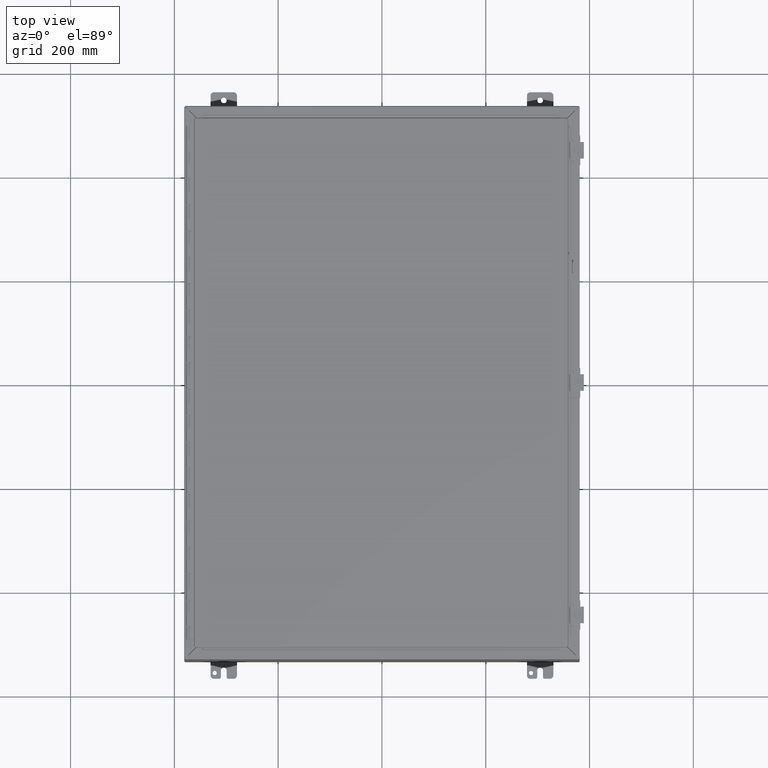
[diagram: clean part render]
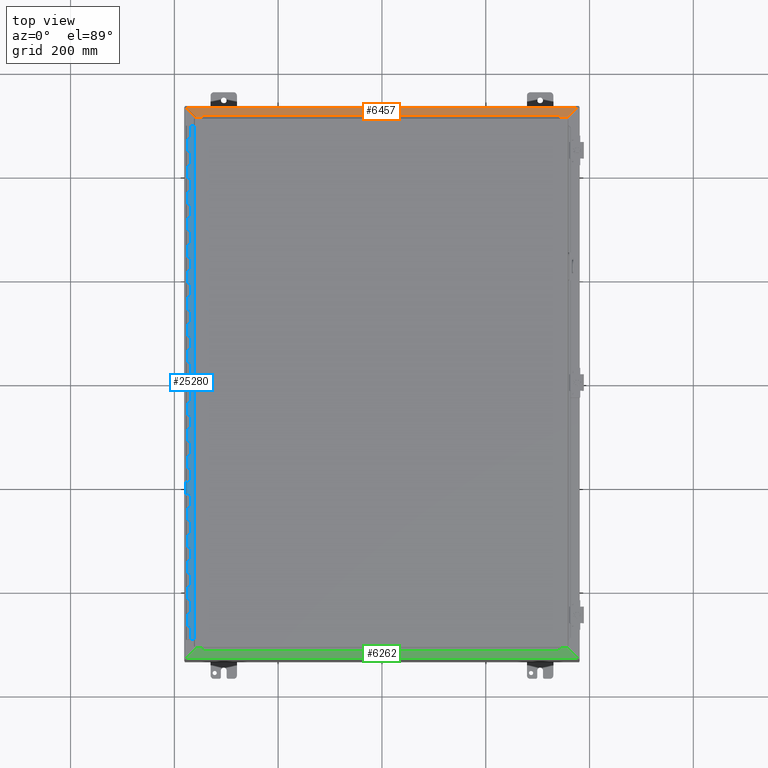
[diagram: same view with three faces highlighted in distinct colors, each labeled with its STEP entity id]
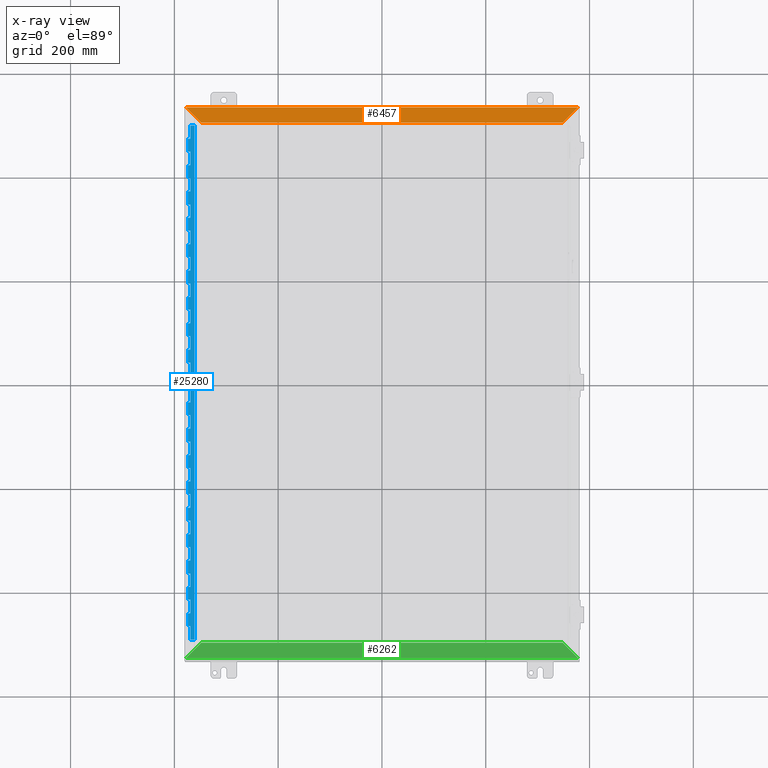
[diagram: x-ray of the same camera — body ghosted, the three highlighted faces saturated]
A machine part, top view with three faces highlighted in distinct colors.
The next image is the same camera in x-ray (body ghosted, the three faces saturated) — at least one of them is partly hidden behind the body in this view.
Their STEP definitions:

[orange] entity #6457 — the highlighted planar face has unit normal (0, 0, 1).
#5017=CARTESIAN_POINT('',(13.719201456544015,19.730250000000058,12.000000000000014));
#5018=VERTEX_POINT('',#5017);
#5065=CARTESIAN_POINT('',(-13.719201456544019,19.730250000000058,12.000000000000014));
#5066=VERTEX_POINT('',#5065);
#5091=CARTESIAN_POINT('',(-13.71920145654402,19.730250000000058,12.000000000000012));
#5092=DIRECTION('',(1.0,0.0,0.0));
#5093=VECTOR('',#5092,27.438402913088034);
#5094=LINE('',#5091,#5093);
#5095=EDGE_CURVE('',#5066,#5018,#5094,.T.);
#5673=CARTESIAN_POINT('',(-14.883701456544024,20.894750000000059,12.000000000000002));
#5674=VERTEX_POINT('',#5673);
#5675=CARTESIAN_POINT('',(-13.719201456544019,19.730250000000058,12.000000000000012));
#5676=DIRECTION('',(-0.707106781186548,0.707106781186547,-8.629104E-015));
#5677=VECTOR('',#5676,1.646851693383476);
#5678=LINE('',#5675,#5677);
#5679=EDGE_CURVE('',#5066,#5674,#5678,.T.);
#6434=CARTESIAN_POINT('',(5.377354E-015,20.303016921115482,12.000000000000005));
#6435=DIRECTION('',(0.0,0.0,1.0));
#6436=DIRECTION('',(0.0,-1.0,0.0));
#6437=AXIS2_PLACEMENT_3D('',#6434,#6435,#6436);
#6438=PLANE('',#6437);
#6439=ORIENTED_EDGE('',*,*,#5095,.T.);
#6440=CARTESIAN_POINT('',(14.883701456544015,20.894750000000059,12.000000000000002));
#6441=VERTEX_POINT('',#6440);
#6442=CARTESIAN_POINT('',(14.883701456544017,20.894750000000059,12.0));
#6443=DIRECTION('',(-0.707106781186548,-0.707106781186548,8.629104E-015));
#6444=VECTOR('',#6443,1.64685169338347);
#6445=LINE('',#6442,#6444);
#6446=EDGE_CURVE('',#6441,#5018,#6445,.T.);
#6447=ORIENTED_EDGE('',*,*,#6446,.F.);
#6448=CARTESIAN_POINT('',(14.883701456544017,20.894750000000062,12.0));
#6449=DIRECTION('',(-1.0,0.0,0.0));
#6450=VECTOR('',#6449,29.767402913088041);
#6451=LINE('',#6448,#6450);
#6452=EDGE_CURVE('',#6441,#5674,#6451,.T.);
#6453=ORIENTED_EDGE('',*,*,#6452,.T.);
#6454=ORIENTED_EDGE('',*,*,#5679,.F.);
#6455=EDGE_LOOP('',(#6439,#6447,#6453,#6454));
#6456=FACE_OUTER_BOUND('',#6455,.T.);
#6457=ADVANCED_FACE('',(#6456),#6438,.T.);

[blue] entity #25280 — the highlighted planar face has unit normal (0.0872, 0, 0.9962).
#22495=CARTESIAN_POINT('',(0.0,-0.125,1.000000000000008));
#22496=VERTEX_POINT('',#22495);
#22506=CARTESIAN_POINT('',(-0.18,-0.125,1.000000000000008));
#22507=VERTEX_POINT('',#22506);
#22508=CARTESIAN_POINT('',(-0.18,-0.125,1.000000000000008));
#22509=DIRECTION('',(1.0,0.0,0.0));
#22510=VECTOR('',#22509,0.18);
#22511=LINE('',#22508,#22510);
#22512=EDGE_CURVE('',#22507,#22496,#22511,.T.);
#22555=CARTESIAN_POINT('',(-0.18,-0.125,0.0));
#22556=VERTEX_POINT('',#22555);
#22570=CARTESIAN_POINT('',(-0.18,-0.125,0.0));
#22571=DIRECTION('',(0.0,0.0,1.0));
#22572=VECTOR('',#22571,1.000000000000008);
#22573=LINE('',#22570,#22572);
#22574=EDGE_CURVE('',#22556,#22507,#22573,.T.);
#22584=CARTESIAN_POINT('',(0.0,-0.125,3.000000000000007));
#22585=VERTEX_POINT('',#22584);
#22595=CARTESIAN_POINT('',(-0.18,-0.125,3.000000000000007));
#22596=VERTEX_POINT('',#22595);
#22597=CARTESIAN_POINT('',(-0.18,-0.125,3.000000000000007));
#22598=DIRECTION('',(1.0,0.0,0.0));
#22599=VECTOR('',#22598,0.18);
#22600=LINE('',#22597,#22599);
#22601=EDGE_CURVE('',#22596,#22585,#22600,.T.);
#22651=CARTESIAN_POINT('',(-0.18,-0.125,1.980000000000007));
#22652=VERTEX_POINT('',#22651);
#22653=CARTESIAN_POINT('',(-0.18,-0.125,1.980000000000006));
#22654=DIRECTION('',(0.0,0.0,1.0));
#22655=VECTOR('',#22654,1.020000000000001);
#22656=LINE('',#22653,#22655);
#22657=EDGE_CURVE('',#22652,#22596,#22656,.T.);
#22675=CARTESIAN_POINT('',(0.0,-0.125,1.980000000000007));
#22676=VERTEX_POINT('',#22675);
#22708=CARTESIAN_POINT('',(0.0,-0.125,1.980000000000007));
#22709=DIRECTION('',(-1.0,0.0,0.0));
#22710=VECTOR('',#22709,0.18);
#22711=LINE('',#22708,#22710);
#22712=EDGE_CURVE('',#22676,#22652,#22711,.T.);
#22722=CARTESIAN_POINT('',(0.0,-0.125,5.000000000000006));
#22723=VERTEX_POINT('',#22722);
#22733=CARTESIAN_POINT('',(-0.18,-0.125,5.000000000000007));
#22734=VERTEX_POINT('',#22733);
#22735=CARTESIAN_POINT('',(-0.18,-0.125,5.000000000000007));
#22736=DIRECTION('',(1.0,0.0,0.0));
#22737=VECTOR('',#22736,0.18);
#22738=LINE('',#22735,#22737);
#22739=EDGE_CURVE('',#22734,#22723,#22738,.T.);
#22789=CARTESIAN_POINT('',(-0.18,-0.125,3.980000000000006));
#22790=VERTEX_POINT('',#22789);
#22791=CARTESIAN_POINT('',(-0.18,-0.125,3.980000000000007));
#22792=DIRECTION('',(0.0,0.0,1.0));
#22793=VECTOR('',#22792,1.020000000000001);
#22794=LINE('',#22791,#22793);
#22795=EDGE_CURVE('',#22790,#22734,#22794,.T.);
#22813=CARTESIAN_POINT('',(0.0,-0.125,3.980000000000006));
#22814=VERTEX_POINT('',#22813);
#22846=CARTESIAN_POINT('',(0.0,-0.125,3.980000000000006));
#22847=DIRECTION('',(-1.0,0.0,0.0));
#22848=VECTOR('',#22847,0.18);
#22849=LINE('',#22846,#22848);
#22850=EDGE_CURVE('',#22814,#22790,#22849,.T.);
#22860=CARTESIAN_POINT('',(0.0,-0.125,7.000000000000006));
#22861=VERTEX_POINT('',#22860);
#22871=CARTESIAN_POINT('',(-0.18,-0.125,7.000000000000006));
#22872=VERTEX_POINT('',#22871);
#22873=CARTESIAN_POINT('',(-0.18,-0.125,7.000000000000006));
#22874=DIRECTION('',(1.0,0.0,0.0));
#22875=VECTOR('',#22874,0.18);
#22876=LINE('',#22873,#22875);
#22877=EDGE_CURVE('',#22872,#22861,#22876,.T.);
#22927=CARTESIAN_POINT('',(-0.18,-0.125,5.980000000000006));
#22928=VERTEX_POINT('',#22927);
#22929=CARTESIAN_POINT('',(-0.18,-0.125,5.980000000000006));
#22930=DIRECTION('',(0.0,0.0,1.0));
#22931=VECTOR('',#22930,1.020000000000001);
#22932=LINE('',#22929,#22931);
#22933=EDGE_CURVE('',#22928,#22872,#22932,.T.);
#22951=CARTESIAN_POINT('',(0.0,-0.125,5.980000000000006));
#22952=VERTEX_POINT('',#22951);
#22984=CARTESIAN_POINT('',(0.0,-0.125,5.980000000000006));
#22985=DIRECTION('',(-1.0,0.0,0.0));
#22986=VECTOR('',#22985,0.18);
#22987=LINE('',#22984,#22986);
#22988=EDGE_CURVE('',#22952,#22928,#22987,.T.);
#22998=CARTESIAN_POINT('',(0.0,-0.125,9.000000000000005));
#22999=VERTEX_POINT('',#22998);
#23009=CARTESIAN_POINT('',(-0.18,-0.125,9.000000000000005));
#23010=VERTEX_POINT('',#23009);
#23011=CARTESIAN_POINT('',(-0.18,-0.125,9.000000000000005));
#23012=DIRECTION('',(1.0,0.0,0.0));
#23013=VECTOR('',#23012,0.18);
#23014=LINE('',#23011,#23013);
#23015=EDGE_CURVE('',#23010,#22999,#23014,.T.);
#23065=CARTESIAN_POINT('',(-0.18,-0.125,7.980000000000005));
#23066=VERTEX_POINT('',#23065);
#23067=CARTESIAN_POINT('',(-0.18,-0.125,7.980000000000005));
#23068=DIRECTION('',(0.0,0.0,1.0));
#23069=VECTOR('',#23068,1.020000000000001);
#23070=LINE('',#23067,#23069);
#23071=EDGE_CURVE('',#23066,#23010,#23070,.T.);
#23089=CARTESIAN_POINT('',(0.0,-0.125,7.980000000000005));
#23090=VERTEX_POINT('',#23089);
#23122=CARTESIAN_POINT('',(0.0,-0.125,7.980000000000005));
#23123=DIRECTION('',(-1.0,0.0,0.0));
#23124=VECTOR('',#23123,0.18);
#23125=LINE('',#23122,#23124);
#23126=EDGE_CURVE('',#23090,#23066,#23125,.T.);
#23136=CARTESIAN_POINT('',(0.0,-0.125,11.000000000000005));
#23137=VERTEX_POINT('',#23136);
#23147=CARTESIAN_POINT('',(-0.18,-0.125,11.000000000000005));
#23148=VERTEX_POINT('',#23147);
#23149=CARTESIAN_POINT('',(-0.18,-0.125,11.000000000000005));
#23150=DIRECTION('',(1.0,0.0,0.0));
#23151=VECTOR('',#23150,0.18);
#23152=LINE('',#23149,#23151);
#23153=EDGE_CURVE('',#23148,#23137,#23152,.T.);
#23203=CARTESIAN_POINT('',(-0.18,-0.125,9.980000000000004));
#23204=VERTEX_POINT('',#23203);
#23205=CARTESIAN_POINT('',(-0.18,-0.125,9.980000000000004));
#23206=DIRECTION('',(0.0,0.0,1.0));
#23207=VECTOR('',#23206,1.020000000000001);
#23208=LINE('',#23205,#23207);
#23209=EDGE_CURVE('',#23204,#23148,#23208,.T.);
#23227=CARTESIAN_POINT('',(0.0,-0.125,9.980000000000004));
#23228=VERTEX_POINT('',#23227);
#23260=CARTESIAN_POINT('',(0.0,-0.125,9.980000000000004));
#23261=DIRECTION('',(-1.0,0.0,0.0));
#23262=VECTOR('',#23261,0.18);
#23263=LINE('',#23260,#23262);
#23264=EDGE_CURVE('',#23228,#23204,#23263,.T.);
#23274=CARTESIAN_POINT('',(0.0,-0.125,13.000000000000005));
#23275=VERTEX_POINT('',#23274);
#23285=CARTESIAN_POINT('',(-0.18,-0.125,13.000000000000005));
#23286=VERTEX_POINT('',#23285);
#23287=CARTESIAN_POINT('',(-0.18,-0.125,13.000000000000005));
#23288=DIRECTION('',(1.0,0.0,0.0));
#23289=VECTOR('',#23288,0.18);
#23290=LINE('',#23287,#23289);
#23291=EDGE_CURVE('',#23286,#23275,#23290,.T.);
#23341=CARTESIAN_POINT('',(-0.18,-0.125,11.980000000000004));
#23342=VERTEX_POINT('',#23341);
#23343=CARTESIAN_POINT('',(-0.18,-0.125,11.980000000000004));
#23344=DIRECTION('',(0.0,0.0,1.0));
#23345=VECTOR('',#23344,1.020000000000001);
#23346=LINE('',#23343,#23345);
#23347=EDGE_CURVE('',#23342,#23286,#23346,.T.);
#23365=CARTESIAN_POINT('',(0.0,-0.125,11.980000000000004));
#23366=VERTEX_POINT('',#23365);
#23398=CARTESIAN_POINT('',(0.0,-0.125,11.980000000000004));
#23399=DIRECTION('',(-1.0,0.0,0.0));
#23400=VECTOR('',#23399,0.18);
#23401=LINE('',#23398,#23400);
#23402=EDGE_CURVE('',#23366,#23342,#23401,.T.);
#23412=CARTESIAN_POINT('',(0.0,-0.125,15.000000000000004));
#23413=VERTEX_POINT('',#23412);
#23423=CARTESIAN_POINT('',(-0.18,-0.125,15.000000000000004));
#23424=VERTEX_POINT('',#23423);
#23425=CARTESIAN_POINT('',(-0.18,-0.125,15.000000000000004));
#23426=DIRECTION('',(1.0,0.0,0.0));
#23427=VECTOR('',#23426,0.18);
#23428=LINE('',#23425,#23427);
#23429=EDGE_CURVE('',#23424,#23413,#23428,.T.);
#23479=CARTESIAN_POINT('',(-0.18,-0.125,13.980000000000004));
#23480=VERTEX_POINT('',#23479);
#23481=CARTESIAN_POINT('',(-0.18,-0.125,13.980000000000004));
#23482=DIRECTION('',(0.0,0.0,1.0));
#23483=VECTOR('',#23482,1.02);
#23484=LINE('',#23481,#23483);
#23485=EDGE_CURVE('',#23480,#23424,#23484,.T.);
#23503=CARTESIAN_POINT('',(0.0,-0.125,13.980000000000004));
#23504=VERTEX_POINT('',#23503);
#23536=CARTESIAN_POINT('',(0.0,-0.125,13.980000000000004));
#23537=DIRECTION('',(-1.0,0.0,0.0));
#23538=VECTOR('',#23537,0.18);
#23539=LINE('',#23536,#23538);
#23540=EDGE_CURVE('',#23504,#23480,#23539,.T.);
#23550=CARTESIAN_POINT('',(0.0,-0.125,17.000000000000007));
#23551=VERTEX_POINT('',#23550);
#23561=CARTESIAN_POINT('',(-0.18,-0.125,17.000000000000007));
#23562=VERTEX_POINT('',#23561);
#23563=CARTESIAN_POINT('',(-0.18,-0.125,17.000000000000007));
#23564=DIRECTION('',(1.0,0.0,0.0));
#23565=VECTOR('',#23564,0.18);
#23566=LINE('',#23563,#23565);
#23567=EDGE_CURVE('',#23562,#23551,#23566,.T.);
#23617=CARTESIAN_POINT('',(-0.18,-0.125,15.980000000000006));
#23618=VERTEX_POINT('',#23617);
#23619=CARTESIAN_POINT('',(-0.18,-0.125,15.980000000000006));
#23620=DIRECTION('',(0.0,0.0,1.0));
#23621=VECTOR('',#23620,1.020000000000001);
#23622=LINE('',#23619,#23621);
#23623=EDGE_CURVE('',#23618,#23562,#23622,.T.);
#23641=CARTESIAN_POINT('',(0.0,-0.125,15.980000000000006));
#23642=VERTEX_POINT('',#23641);
#23674=CARTESIAN_POINT('',(0.0,-0.125,15.980000000000006));
#23675=DIRECTION('',(-1.0,0.0,0.0));
#23676=VECTOR('',#23675,0.18);
#23677=LINE('',#23674,#23676);
#23678=EDGE_CURVE('',#23642,#23618,#23677,.T.);
#23688=CARTESIAN_POINT('',(0.0,-0.125,19.000000000000007));
#23689=VERTEX_POINT('',#23688);
#23699=CARTESIAN_POINT('',(-0.18,-0.125,19.000000000000007));
#23700=VERTEX_POINT('',#23699);
#23701=CARTESIAN_POINT('',(-0.18,-0.125,19.000000000000007));
#23702=DIRECTION('',(1.0,0.0,0.0));
#23703=VECTOR('',#23702,0.18);
#23704=LINE('',#23701,#23703);
#23705=EDGE_CURVE('',#23700,#23689,#23704,.T.);
#23755=CARTESIAN_POINT('',(-0.18,-0.125,17.980000000000004));
#23756=VERTEX_POINT('',#23755);
#23757=CARTESIAN_POINT('',(-0.18,-0.125,17.980000000000004));
#23758=DIRECTION('',(0.0,0.0,1.0));
#23759=VECTOR('',#23758,1.020000000000003);
#23760=LINE('',#23757,#23759);
#23761=EDGE_CURVE('',#23756,#23700,#23760,.T.);
#23779=CARTESIAN_POINT('',(0.0,-0.125,17.980000000000004));
#23780=VERTEX_POINT('',#23779);
#23812=CARTESIAN_POINT('',(-3.081488E-033,-0.125,17.980000000000004));
#23813=DIRECTION('',(-1.0,0.0,0.0));
#23814=VECTOR('',#23813,0.18);
#23815=LINE('',#23812,#23814);
#23816=EDGE_CURVE('',#23780,#23756,#23815,.T.);
#23826=CARTESIAN_POINT('',(0.0,-0.125,21.000000000000007));
#23827=VERTEX_POINT('',#23826);
#23837=CARTESIAN_POINT('',(-0.18,-0.125,21.000000000000007));
#23838=VERTEX_POINT('',#23837);
#23839=CARTESIAN_POINT('',(-0.18,-0.125,21.000000000000007));
#23840=DIRECTION('',(1.0,0.0,0.0));
#23841=VECTOR('',#23840,0.18);
#23842=LINE('',#23839,#23841);
#23843=EDGE_CURVE('',#23838,#23827,#23842,.T.);
#23893=CARTESIAN_POINT('',(-0.18,-0.125,19.980000000000004));
#23894=VERTEX_POINT('',#23893);
#23895=CARTESIAN_POINT('',(-0.18,-0.125,19.980000000000004));
#23896=DIRECTION('',(0.0,0.0,1.0));
#23897=VECTOR('',#23896,1.020000000000003);
#23898=LINE('',#23895,#23897);
#23899=EDGE_CURVE('',#23894,#23838,#23898,.T.);
#23917=CARTESIAN_POINT('',(0.0,-0.125,19.980000000000004));
#23918=VERTEX_POINT('',#23917);
#23950=CARTESIAN_POINT('',(-6.162976E-033,-0.125,19.980000000000004));
#23951=DIRECTION('',(-1.0,0.0,0.0));
#23952=VECTOR('',#23951,0.18);
#23953=LINE('',#23950,#23952);
#23954=EDGE_CURVE('',#23918,#23894,#23953,.T.);
#23964=CARTESIAN_POINT('',(0.0,-0.125,23.000000000000004));
#23965=VERTEX_POINT('',#23964);
#23975=CARTESIAN_POINT('',(-0.18,-0.125,23.000000000000004));
#23976=VERTEX_POINT('',#23975);
#23977=CARTESIAN_POINT('',(-0.18,-0.125,23.000000000000004));
#23978=DIRECTION('',(1.0,0.0,0.0));
#23979=VECTOR('',#23978,0.18);
#23980=LINE('',#23977,#23979);
#23981=EDGE_CURVE('',#23976,#23965,#23980,.T.);
#24031=CARTESIAN_POINT('',(-0.18,-0.125,21.980000000000004));
#24032=VERTEX_POINT('',#24031);
#24033=CARTESIAN_POINT('',(-0.18,-0.125,21.980000000000004));
#24034=DIRECTION('',(0.0,0.0,1.0));
#24035=VECTOR('',#24034,1.02);
#24036=LINE('',#24033,#24035);
#24037=EDGE_CURVE('',#24032,#23976,#24036,.T.);
#24055=CARTESIAN_POINT('',(0.0,-0.125,21.980000000000004));
#24056=VERTEX_POINT('',#24055);
#24088=CARTESIAN_POINT('',(-6.162976E-033,-0.125,21.980000000000004));
#24089=DIRECTION('',(-1.0,0.0,0.0));
#24090=VECTOR('',#24089,0.18);
#24091=LINE('',#24088,#24090);
#24092=EDGE_CURVE('',#24056,#24032,#24091,.T.);
#24102=CARTESIAN_POINT('',(0.0,-0.125,25.000000000000007));
#24103=VERTEX_POINT('',#24102);
#24113=CARTESIAN_POINT('',(-0.18,-0.125,25.000000000000007));
#24114=VERTEX_POINT('',#24113);
#24115=CARTESIAN_POINT('',(-0.18,-0.125,25.000000000000007));
#24116=DIRECTION('',(1.0,0.0,0.0));
#24117=VECTOR('',#24116,0.18);
#24118=LINE('',#24115,#24117);
#24119=EDGE_CURVE('',#24114,#24103,#24118,.T.);
#24169=CARTESIAN_POINT('',(-0.18,-0.125,23.980000000000008));
#24170=VERTEX_POINT('',#24169);
#24171=CARTESIAN_POINT('',(-0.18,-0.125,23.980000000000004));
#24172=DIRECTION('',(0.0,0.0,1.0));
#24173=VECTOR('',#24172,1.020000000000003);
#24174=LINE('',#24171,#24173);
#24175=EDGE_CURVE('',#24170,#24114,#24174,.T.);
#24193=CARTESIAN_POINT('',(0.0,-0.125,23.980000000000008));
#24194=VERTEX_POINT('',#24193);
#24226=CARTESIAN_POINT('',(-6.162976E-033,-0.125,23.980000000000008));
#24227=DIRECTION('',(-1.0,0.0,0.0));
#24228=VECTOR('',#24227,0.18);
#24229=LINE('',#24226,#24228);
#24230=EDGE_CURVE('',#24194,#24170,#24229,.T.);
#24240=CARTESIAN_POINT('',(0.0,-0.125,27.0));
#24241=VERTEX_POINT('',#24240);
#24251=CARTESIAN_POINT('',(-0.18,-0.125,27.0));
#24252=VERTEX_POINT('',#24251);
#24253=CARTESIAN_POINT('',(-0.18,-0.125,27.0));
#24254=DIRECTION('',(1.0,0.0,0.0));
#24255=VECTOR('',#24254,0.18);
#24256=LINE('',#24253,#24255);
#24257=EDGE_CURVE('',#24252,#24241,#24256,.T.);
#24307=CARTESIAN_POINT('',(-0.18,-0.125,25.98));
#24308=VERTEX_POINT('',#24307);
#24309=CARTESIAN_POINT('',(-0.18,-0.125,25.98));
#24310=DIRECTION('',(0.0,0.0,1.0));
#24311=VECTOR('',#24310,1.02);
#24312=LINE('',#24309,#24311);
#24313=EDGE_CURVE('',#24308,#24252,#24312,.T.);
#24331=CARTESIAN_POINT('',(0.0,-0.125,25.98));
#24332=VERTEX_POINT('',#24331);
#24364=CARTESIAN_POINT('',(-6.162976E-033,-0.125,25.98));
#24365=DIRECTION('',(-1.0,0.0,0.0));
#24366=VECTOR('',#24365,0.18);
#24367=LINE('',#24364,#24366);
#24368=EDGE_CURVE('',#24332,#24308,#24367,.T.);
#24378=CARTESIAN_POINT('',(0.0,-0.125,29.000000000000007));
#24379=VERTEX_POINT('',#24378);
#24389=CARTESIAN_POINT('',(-0.18,-0.125,29.000000000000007));
#24390=VERTEX_POINT('',#24389);
#24391=CARTESIAN_POINT('',(-0.18,-0.125,29.000000000000007));
#24392=DIRECTION('',(1.0,0.0,0.0));
#24393=VECTOR('',#24392,0.18);
#24394=LINE('',#24391,#24393);
#24395=EDGE_CURVE('',#24390,#24379,#24394,.T.);
#24445=CARTESIAN_POINT('',(-0.18,-0.125,27.980000000000004));
#24446=VERTEX_POINT('',#24445);
#24447=CARTESIAN_POINT('',(-0.18,-0.125,27.980000000000004));
#24448=DIRECTION('',(0.0,0.0,1.0));
#24449=VECTOR('',#24448,1.020000000000003);
#24450=LINE('',#24447,#24449);
#24451=EDGE_CURVE('',#24446,#24390,#24450,.T.);
#24469=CARTESIAN_POINT('',(0.0,-0.125,27.980000000000004));
#24470=VERTEX_POINT('',#24469);
#24502=CARTESIAN_POINT('',(-6.162976E-033,-0.125,27.980000000000004));
#24503=DIRECTION('',(-1.0,0.0,0.0));
#24504=VECTOR('',#24503,0.18);
#24505=LINE('',#24502,#24504);
#24506=EDGE_CURVE('',#24470,#24446,#24505,.T.);
#24516=CARTESIAN_POINT('',(0.0,-0.125,31.000000000000007));
#24517=VERTEX_POINT('',#24516);
#24527=CARTESIAN_POINT('',(-0.18,-0.125,31.000000000000007));
#24528=VERTEX_POINT('',#24527);
#24529=CARTESIAN_POINT('',(-0.18,-0.125,31.000000000000007));
#24530=DIRECTION('',(1.0,0.0,0.0));
#24531=VECTOR('',#24530,0.18);
#24532=LINE('',#24529,#24531);
#24533=EDGE_CURVE('',#24528,#24517,#24532,.T.);
#24583=CARTESIAN_POINT('',(-0.18,-0.125,29.980000000000004));
#24584=VERTEX_POINT('',#24583);
#24585=CARTESIAN_POINT('',(-0.18,-0.125,29.980000000000004));
#24586=DIRECTION('',(0.0,0.0,1.0));
#24587=VECTOR('',#24586,1.020000000000003);
#24588=LINE('',#24585,#24587);
#24589=EDGE_CURVE('',#24584,#24528,#24588,.T.);
#24607=CARTESIAN_POINT('',(0.0,-0.125,29.980000000000004));
#24608=VERTEX_POINT('',#24607);
#24640=CARTESIAN_POINT('',(-6.162976E-033,-0.125,29.980000000000004));
#24641=DIRECTION('',(-1.0,0.0,0.0));
#24642=VECTOR('',#24641,0.18);
#24643=LINE('',#24640,#24642);
#24644=EDGE_CURVE('',#24608,#24584,#24643,.T.);
#24654=CARTESIAN_POINT('',(0.0,-0.125,33.000000000000007));
#24655=VERTEX_POINT('',#24654);
#24665=CARTESIAN_POINT('',(-0.18,-0.125,33.000000000000007));
#24666=VERTEX_POINT('',#24665);
#24667=CARTESIAN_POINT('',(-0.18,-0.125,33.000000000000007));
#24668=DIRECTION('',(1.0,0.0,0.0));
#24669=VECTOR('',#24668,0.18);
#24670=LINE('',#24667,#24669);
#24671=EDGE_CURVE('',#24666,#24655,#24670,.T.);
#24721=CARTESIAN_POINT('',(-0.18,-0.125,31.980000000000004));
#24722=VERTEX_POINT('',#24721);
#24723=CARTESIAN_POINT('',(-0.18,-0.125,31.980000000000004));
#24724=DIRECTION('',(0.0,0.0,1.0));
#24725=VECTOR('',#24724,1.020000000000003);
#24726=LINE('',#24723,#24725);
#24727=EDGE_CURVE('',#24722,#24666,#24726,.T.);
#24745=CARTESIAN_POINT('',(0.0,-0.125,31.980000000000004));
#24746=VERTEX_POINT('',#24745);
#24778=CARTESIAN_POINT('',(-6.162976E-033,-0.125,31.980000000000004));
#24779=DIRECTION('',(-1.0,0.0,0.0));
#24780=VECTOR('',#24779,0.18);
#24781=LINE('',#24778,#24780);
#24782=EDGE_CURVE('',#24746,#24722,#24781,.T.);
#24792=CARTESIAN_POINT('',(0.0,-0.125,35.000000000000007));
#24793=VERTEX_POINT('',#24792);
#24803=CARTESIAN_POINT('',(-0.18,-0.125,35.000000000000007));
#24804=VERTEX_POINT('',#24803);
#24805=CARTESIAN_POINT('',(-0.18,-0.125,35.000000000000007));
#24806=DIRECTION('',(1.0,0.0,0.0));
#24807=VECTOR('',#24806,0.18);
#24808=LINE('',#24805,#24807);
#24809=EDGE_CURVE('',#24804,#24793,#24808,.T.);
#24859=CARTESIAN_POINT('',(-0.18,-0.125,33.980000000000004));
#24860=VERTEX_POINT('',#24859);
#24861=CARTESIAN_POINT('',(-0.18,-0.125,33.980000000000004));
#24862=DIRECTION('',(0.0,0.0,1.0));
#24863=VECTOR('',#24862,1.020000000000003);
#24864=LINE('',#24861,#24863);
#24865=EDGE_CURVE('',#24860,#24804,#24864,.T.);
#24883=CARTESIAN_POINT('',(0.0,-0.125,33.979999999999997));
#24884=VERTEX_POINT('',#24883);
#24916=CARTESIAN_POINT('',(-6.162976E-033,-0.125,33.980000000000004));
#24917=DIRECTION('',(-1.0,0.0,0.0));
#24918=VECTOR('',#24917,0.18);
#24919=LINE('',#24916,#24918);
#24920=EDGE_CURVE('',#24884,#24860,#24919,.T.);
#24930=CARTESIAN_POINT('',(0.0,-0.125,37.000000000000007));
#24931=VERTEX_POINT('',#24930);
#24941=CARTESIAN_POINT('',(-0.18,-0.125,37.000000000000007));
#24942=VERTEX_POINT('',#24941);
#24943=CARTESIAN_POINT('',(-0.18,-0.125,37.000000000000007));
#24944=DIRECTION('',(1.0,0.0,0.0));
#24945=VECTOR('',#24944,0.18);
#24946=LINE('',#24943,#24945);
#24947=EDGE_CURVE('',#24942,#24931,#24946,.T.);
#24997=CARTESIAN_POINT('',(-0.18,-0.125,35.980000000000004));
#24998=VERTEX_POINT('',#24997);
#24999=CARTESIAN_POINT('',(-0.18,-0.125,35.980000000000004));
#25000=DIRECTION('',(0.0,0.0,1.0));
#25001=VECTOR('',#25000,1.020000000000003);
#25002=LINE('',#24999,#25001);
#25003=EDGE_CURVE('',#24998,#24942,#25002,.T.);
#25021=CARTESIAN_POINT('',(0.0,-0.125,35.980000000000004));
#25022=VERTEX_POINT('',#25021);
#25054=CARTESIAN_POINT('',(-6.162976E-033,-0.125,35.980000000000004));
#25055=DIRECTION('',(-1.0,0.0,0.0));
#25056=VECTOR('',#25055,0.18);
#25057=LINE('',#25054,#25056);
#25058=EDGE_CURVE('',#25022,#24998,#25057,.T.);
#25063=CARTESIAN_POINT('',(1.530808E-017,-0.125,0.0));
#25064=DIRECTION('',(0.0,-1.0,0.0));
#25065=DIRECTION('',(0.0,0.0,-1.0));
#25066=AXIS2_PLACEMENT_3D('',#25063,#25064,#25065);
#25067=PLANE('',#25066);
#25068=ORIENTED_EDGE('',*,*,#22574,.T.);
#25069=ORIENTED_EDGE('',*,*,#22512,.T.);
#25070=CARTESIAN_POINT('',(1.530808E-017,-0.125,1.000000000000008));
#25071=DIRECTION('',(0.0,0.0,1.0));
#25072=VECTOR('',#25071,0.979999999999999);
#25073=LINE('',#25070,#25072);
#25074=EDGE_CURVE('',#22496,#22676,#25073,.T.);
#25075=ORIENTED_EDGE('',*,*,#25074,.T.);
#25076=ORIENTED_EDGE('',*,*,#22712,.T.);
#25077=ORIENTED_EDGE('',*,*,#22657,.T.);
#25078=ORIENTED_EDGE('',*,*,#22601,.T.);
#25079=CARTESIAN_POINT('',(1.530808E-017,-0.125,3.000000000000007));
#25080=DIRECTION('',(0.0,0.0,1.0));
#25081=VECTOR('',#25080,0.979999999999999);
#25082=LINE('',#25079,#25081);
#25083=EDGE_CURVE('',#22585,#22814,#25082,.T.);
#25084=ORIENTED_EDGE('',*,*,#25083,.T.);
#25085=ORIENTED_EDGE('',*,*,#22850,.T.);
#25086=ORIENTED_EDGE('',*,*,#22795,.T.);
#25087=ORIENTED_EDGE('',*,*,#22739,.T.);
#25088=CARTESIAN_POINT('',(1.530808E-017,-0.125,5.000000000000006));
#25089=DIRECTION('',(0.0,0.0,1.0));
#25090=VECTOR('',#25089,0.98);
#25091=LINE('',#25088,#25090);
#25092=EDGE_CURVE('',#22723,#22952,#25091,.T.);
#25093=ORIENTED_EDGE('',*,*,#25092,.T.);
#25094=ORIENTED_EDGE('',*,*,#22988,.T.);
#25095=ORIENTED_EDGE('',*,*,#22933,.T.);
#25096=ORIENTED_EDGE('',*,*,#22877,.T.);
#25097=CARTESIAN_POINT('',(1.530808E-017,-0.125,7.000000000000006));
#25098=DIRECTION('',(0.0,0.0,1.0));
#25099=VECTOR('',#25098,0.979999999999999);
#25100=LINE('',#25097,#25099);
#25101=EDGE_CURVE('',#22861,#23090,#25100,.T.);
#25102=ORIENTED_EDGE('',*,*,#25101,.T.);
#25103=ORIENTED_EDGE('',*,*,#23126,.T.);
#25104=ORIENTED_EDGE('',*,*,#23071,.T.);
#25105=ORIENTED_EDGE('',*,*,#23015,.T.);
#25106=CARTESIAN_POINT('',(1.530808E-017,-0.125,9.000000000000005));
#25107=DIRECTION('',(0.0,0.0,1.0));
#25108=VECTOR('',#25107,0.979999999999999);
#25109=LINE('',#25106,#25108);
#25110=EDGE_CURVE('',#22999,#23228,#25109,.T.);
#25111=ORIENTED_EDGE('',*,*,#25110,.T.);
#25112=ORIENTED_EDGE('',*,*,#23264,.T.);
#25113=ORIENTED_EDGE('',*,*,#23209,.T.);
#25114=ORIENTED_EDGE('',*,*,#23153,.T.);
#25115=CARTESIAN_POINT('',(1.530808E-017,-0.125,11.000000000000005));
#25116=DIRECTION('',(0.0,0.0,1.0));
#25117=VECTOR('',#25116,0.979999999999999);
#25118=LINE('',#25115,#25117);
#25119=EDGE_CURVE('',#23137,#23366,#25118,.T.);
#25120=ORIENTED_EDGE('',*,*,#25119,.T.);
#25121=ORIENTED_EDGE('',*,*,#23402,.T.);
#25122=ORIENTED_EDGE('',*,*,#23347,.T.);
#25123=ORIENTED_EDGE('',*,*,#23291,.T.);
#25124=CARTESIAN_POINT('',(1.530808E-017,-0.125,13.000000000000005));
#25125=DIRECTION('',(0.0,0.0,1.0));
#25126=VECTOR('',#25125,0.979999999999999);
#25127=LINE('',#25124,#25126);
#25128=EDGE_CURVE('',#23275,#23504,#25127,.T.);
#25129=ORIENTED_EDGE('',*,*,#25128,.T.);
#25130=ORIENTED_EDGE('',*,*,#23540,.T.);
#25131=ORIENTED_EDGE('',*,*,#23485,.T.);
#25132=ORIENTED_EDGE('',*,*,#23429,.T.);
#25133=CARTESIAN_POINT('',(1.530808E-017,-0.125,15.000000000000004));
#25134=DIRECTION('',(0.0,0.0,1.0));
#25135=VECTOR('',#25134,0.980000000000002);
#25136=LINE('',#25133,#25135);
#25137=EDGE_CURVE('',#23413,#23642,#25136,.T.);
#25138=ORIENTED_EDGE('',*,*,#25137,.T.);
#25139=ORIENTED_EDGE('',*,*,#23678,.T.);
#25140=ORIENTED_EDGE('',*,*,#23623,.T.);
#25141=ORIENTED_EDGE('',*,*,#23567,.T.);
#25142=CARTESIAN_POINT('',(1.530808E-017,-0.125,17.000000000000007));
#25143=DIRECTION('',(0.0,0.0,1.0));
#25144=VECTOR('',#25143,0.979999999999997);
#25145=LINE('',#25142,#25144);
#25146=EDGE_CURVE('',#23551,#23780,#25145,.T.);
#25147=ORIENTED_EDGE('',*,*,#25146,.T.);
#25148=ORIENTED_EDGE('',*,*,#23816,.T.);
#25149=ORIENTED_EDGE('',*,*,#23761,.T.);
#25150=ORIENTED_EDGE('',*,*,#23705,.T.);
#25151=CARTESIAN_POINT('',(1.530808E-017,-0.125,19.000000000000007));
#25152=DIRECTION('',(0.0,0.0,1.0));
#25153=VECTOR('',#25152,0.979999999999997);
#25154=LINE('',#25151,#25153);
#25155=EDGE_CURVE('',#23689,#23918,#25154,.T.);
#25156=ORIENTED_EDGE('',*,*,#25155,.T.);
#25157=ORIENTED_EDGE('',*,*,#23954,.T.);
#25158=ORIENTED_EDGE('',*,*,#23899,.T.);
#25159=ORIENTED_EDGE('',*,*,#23843,.T.);
#25160=CARTESIAN_POINT('',(1.530808E-017,-0.125,21.000000000000007));
#25161=DIRECTION('',(0.0,0.0,1.0));
#25162=VECTOR('',#25161,0.979999999999997);
#25163=LINE('',#25160,#25162);
#25164=EDGE_CURVE('',#23827,#24056,#25163,.T.);
#25165=ORIENTED_EDGE('',*,*,#25164,.T.);
#25166=ORIENTED_EDGE('',*,*,#24092,.T.);
#25167=ORIENTED_EDGE('',*,*,#24037,.T.);
#25168=ORIENTED_EDGE('',*,*,#23981,.T.);
#25169=CARTESIAN_POINT('',(1.530808E-017,-0.125,23.000000000000004));
#25170=DIRECTION('',(0.0,0.0,1.0));
#25171=VECTOR('',#25170,0.980000000000004);
#25172=LINE('',#25169,#25171);
#25173=EDGE_CURVE('',#23965,#24194,#25172,.T.);
#25174=ORIENTED_EDGE('',*,*,#25173,.T.);
#25175=ORIENTED_EDGE('',*,*,#24230,.T.);
#25176=ORIENTED_EDGE('',*,*,#24175,.T.);
#25177=ORIENTED_EDGE('',*,*,#24119,.T.);
#25178=CARTESIAN_POINT('',(1.530808E-017,-0.125,25.000000000000007));
#25179=DIRECTION('',(0.0,0.0,1.0));
#25180=VECTOR('',#25179,0.979999999999993);
#25181=LINE('',#25178,#25180);
#25182=EDGE_CURVE('',#24103,#24332,#25181,.T.);
#25183=ORIENTED_EDGE('',*,*,#25182,.T.);
#25184=ORIENTED_EDGE('',*,*,#24368,.T.);
#25185=ORIENTED_EDGE('',*,*,#24313,.T.);
#25186=ORIENTED_EDGE('',*,*,#24257,.T.);
#25187=CARTESIAN_POINT('',(1.530808E-017,-0.125,27.0));
#25188=DIRECTION('',(0.0,0.0,1.0));
#25189=VECTOR('',#25188,0.980000000000004);
#25190=LINE('',#25187,#25189);
#25191=EDGE_CURVE('',#24241,#24470,#25190,.T.);
#25192=ORIENTED_EDGE('',*,*,#25191,.T.);
#25193=ORIENTED_EDGE('',*,*,#24506,.T.);
#25194=ORIENTED_EDGE('',*,*,#24451,.T.);
#25195=ORIENTED_EDGE('',*,*,#24395,.T.);
#25196=CARTESIAN_POINT('',(1.530808E-017,-0.125,29.000000000000007));
#25197=DIRECTION('',(0.0,0.0,1.0));
#25198=VECTOR('',#25197,0.979999999999997);
#25199=LINE('',#25196,#25198);
#25200=EDGE_CURVE('',#24379,#24608,#25199,.T.);
#25201=ORIENTED_EDGE('',*,*,#25200,.T.);
#25202=ORIENTED_EDGE('',*,*,#24644,.T.);
#25203=ORIENTED_EDGE('',*,*,#24589,.T.);
#25204=ORIENTED_EDGE('',*,*,#24533,.T.);
#25205=CARTESIAN_POINT('',(1.530808E-017,-0.125,31.000000000000007));
#25206=DIRECTION('',(0.0,0.0,1.0));
#25207=VECTOR('',#25206,0.979999999999997);
#25208=LINE('',#25205,#25207);
#25209=EDGE_CURVE('',#24517,#24746,#25208,.T.);
#25210=ORIENTED_EDGE('',*,*,#25209,.T.);
#25211=ORIENTED_EDGE('',*,*,#24782,.T.);
#25212=ORIENTED_EDGE('',*,*,#24727,.T.);
#25213=ORIENTED_EDGE('',*,*,#24671,.T.);
#25214=CARTESIAN_POINT('',(1.530808E-017,-0.125,33.000000000000007));
#25215=DIRECTION('',(0.0,0.0,1.0));
#25216=VECTOR('',#25215,0.97999999999999);
#25217=LINE('',#25214,#25216);
#25218=EDGE_CURVE('',#24655,#24884,#25217,.T.);
#25219=ORIENTED_EDGE('',*,*,#25218,.T.);
#25220=ORIENTED_EDGE('',*,*,#24920,.T.);
#25221=ORIENTED_EDGE('',*,*,#24865,.T.);
#25222=ORIENTED_EDGE('',*,*,#24809,.T.);
#25223=CARTESIAN_POINT('',(1.530808E-017,-0.125,35.000000000000007));
#25224=DIRECTION('',(0.0,0.0,1.0));
#25225=VECTOR('',#25224,0.979999999999997);
#25226=LINE('',#25223,#25225);
#25227=EDGE_CURVE('',#24793,#25022,#25226,.T.);
#25228=ORIENTED_EDGE('',*,*,#25227,.T.);
#25229=ORIENTED_EDGE('',*,*,#25058,.T.);
#25230=ORIENTED_EDGE('',*,*,#25003,.T.);
#25231=ORIENTED_EDGE('',*,*,#24947,.T.);
#25232=CARTESIAN_POINT('',(0.0,-0.125,37.980000000000004));
#25233=VERTEX_POINT('',#25232);
#25234=CARTESIAN_POINT('',(1.530808E-017,-0.125,37.000000000000007));
#25235=DIRECTION('',(0.0,0.0,1.0));
#25236=VECTOR('',#25235,0.979999999999997);
#25237=LINE('',#25234,#25236);
#25238=EDGE_CURVE('',#24931,#25233,#25237,.T.);
#25239=ORIENTED_EDGE('',*,*,#25238,.T.);
#25240=CARTESIAN_POINT('',(-0.18,-0.125,37.980000000000004));
#25241=VERTEX_POINT('',#25240);
#25242=CARTESIAN_POINT('',(-3.081488E-033,-0.125,37.980000000000004));
#25243=DIRECTION('',(-1.0,0.0,0.0));
#25244=VECTOR('',#25243,0.18);
#25245=LINE('',#25242,#25244);
#25246=EDGE_CURVE('',#25233,#25241,#25245,.T.);
#25247=ORIENTED_EDGE('',*,*,#25246,.T.);
#25248=CARTESIAN_POINT('',(-0.18,-0.125,39.0));
#25249=VERTEX_POINT('',#25248);
#25250=CARTESIAN_POINT('',(-0.18,-0.125,37.980000000000004));
#25251=DIRECTION('',(0.0,0.0,1.0));
#25252=VECTOR('',#25251,1.019999999999996);
#25253=LINE('',#25250,#25252);
#25254=EDGE_CURVE('',#25241,#25249,#25253,.T.);
#25255=ORIENTED_EDGE('',*,*,#25254,.T.);
#25256=CARTESIAN_POINT('',(-0.511005076730884,-0.125,39.0));
#25257=VERTEX_POINT('',#25256);
#25258=CARTESIAN_POINT('',(-0.18,-0.125,39.0));
#25259=DIRECTION('',(-1.0,0.0,0.0));
#25260=VECTOR('',#25259,0.331005076730884);
#25261=LINE('',#25258,#25260);
#25262=EDGE_CURVE('',#25249,#25257,#25261,.T.);
#25263=ORIENTED_EDGE('',*,*,#25262,.T.);
#25264=CARTESIAN_POINT('',(-0.511005076730884,-0.125,0.0));
#25265=VERTEX_POINT('',#25264);
#25266=CARTESIAN_POINT('',(-0.511005076730884,-0.125,0.0));
#25267=DIRECTION('',(0.0,0.0,1.0));
#25268=VECTOR('',#25267,39.0);
#25269=LINE('',#25266,#25268);
#25270=EDGE_CURVE('',#25265,#25257,#25269,.T.);
#25271=ORIENTED_EDGE('',*,*,#25270,.F.);
#25272=CARTESIAN_POINT('',(-0.511005076730884,-0.125,0.0));
#25273=DIRECTION('',(1.0,0.0,0.0));
#25274=VECTOR('',#25273,0.331005076730884);
#25275=LINE('',#25272,#25274);
#25276=EDGE_CURVE('',#25265,#22556,#25275,.T.);
#25277=ORIENTED_EDGE('',*,*,#25276,.T.);
#25278=EDGE_LOOP('',(#25068,#25069,#25075,#25076,#25077,#25078,#25084,#25085,#25086,#25087,#25093,#25094,#25095,#25096,#25102,#25103,#25104,#25105,#25111,#25112,#25113,#25114,#25120,#25121,#25122,#25123,#25129,#25130,#25131,#25132,#25138,#25139,#25140,#25141,#25147,#25148,#25149,#25150,#25156,#25157,#25158,#25159,#25165,#25166,#25167,#25168,#25174,#25175,#25176,#25177,#25183,#25184,#25185,#25186,#25192,#25193,#25194,#25195,#25201,#25202,#25203,#25204,#25210,#25211,#25212,#25213,#25219,#25220,#25221,#25222,#25228,#25229,#25230,#25231,#25239,#25247,#25255,#25263,#25271,#25277));
#25279=FACE_OUTER_BOUND('',#25278,.T.);
#25280=ADVANCED_FACE('',(#25279),#25067,.T.);

[green] entity #6262 — the highlighted planar face has unit normal (0, 0, -1).
#5177=CARTESIAN_POINT('',(-13.71920145654402,-19.730250000000069,12.000000000000014));
#5178=VERTEX_POINT('',#5177);
#5225=CARTESIAN_POINT('',(13.719201456544024,-19.730250000000058,12.000000000000016));
#5226=VERTEX_POINT('',#5225);
#5251=CARTESIAN_POINT('',(13.719201456544022,-19.730250000000062,12.000000000000009));
#5252=DIRECTION('',(-1.0,0.0,0.0));
#5253=VECTOR('',#5252,27.438402913088041);
#5254=LINE('',#5251,#5253);
#5255=EDGE_CURVE('',#5226,#5178,#5254,.T.);
#5783=CARTESIAN_POINT('',(14.883701456544028,-20.894750000000059,12.000000000000004));
#5784=VERTEX_POINT('',#5783);
#5785=CARTESIAN_POINT('',(13.719201456544026,-19.730250000000062,12.000000000000011));
#5786=DIRECTION('',(0.707106781186549,-0.707106781186546,-7.550466E-015));
#5787=VECTOR('',#5786,1.646851693383469);
#5788=LINE('',#5785,#5787);
#5789=EDGE_CURVE('',#5226,#5784,#5788,.T.);
#6239=CARTESIAN_POINT('',(-4.174037E-015,-20.303016921115489,12.000000000000004));
#6240=DIRECTION('',(0.0,0.0,-1.0));
#6241=DIRECTION('',(0.0,1.0,0.0));
#6242=AXIS2_PLACEMENT_3D('',#6239,#6240,#6241);
#6243=PLANE('',#6242);
#6244=ORIENTED_EDGE('',*,*,#5255,.T.);
#6245=CARTESIAN_POINT('',(-14.883701456544014,-20.894750000000069,12.0));
#6246=VERTEX_POINT('',#6245);
#6247=CARTESIAN_POINT('',(-14.883701456544015,-20.894750000000069,12.0));
#6248=DIRECTION('',(0.707106781186547,0.707106781186548,6.471828E-015));
#6249=VECTOR('',#6248,1.646851693383463);
#6250=LINE('',#6247,#6249);
#6251=EDGE_CURVE('',#6246,#5178,#6250,.T.);
#6252=ORIENTED_EDGE('',*,*,#6251,.F.);
#6253=CARTESIAN_POINT('',(-14.883701456544014,-20.894750000000073,11.999999999999998));
#6254=DIRECTION('',(1.0,0.0,0.0));
#6255=VECTOR('',#6254,29.767402913088041);
#6256=LINE('',#6253,#6255);
#6257=EDGE_CURVE('',#6246,#5784,#6256,.T.);
#6258=ORIENTED_EDGE('',*,*,#6257,.T.);
#6259=ORIENTED_EDGE('',*,*,#5789,.F.);
#6260=EDGE_LOOP('',(#6244,#6252,#6258,#6259));
#6261=FACE_OUTER_BOUND('',#6260,.T.);
#6262=ADVANCED_FACE('',(#6261),#6243,.F.);